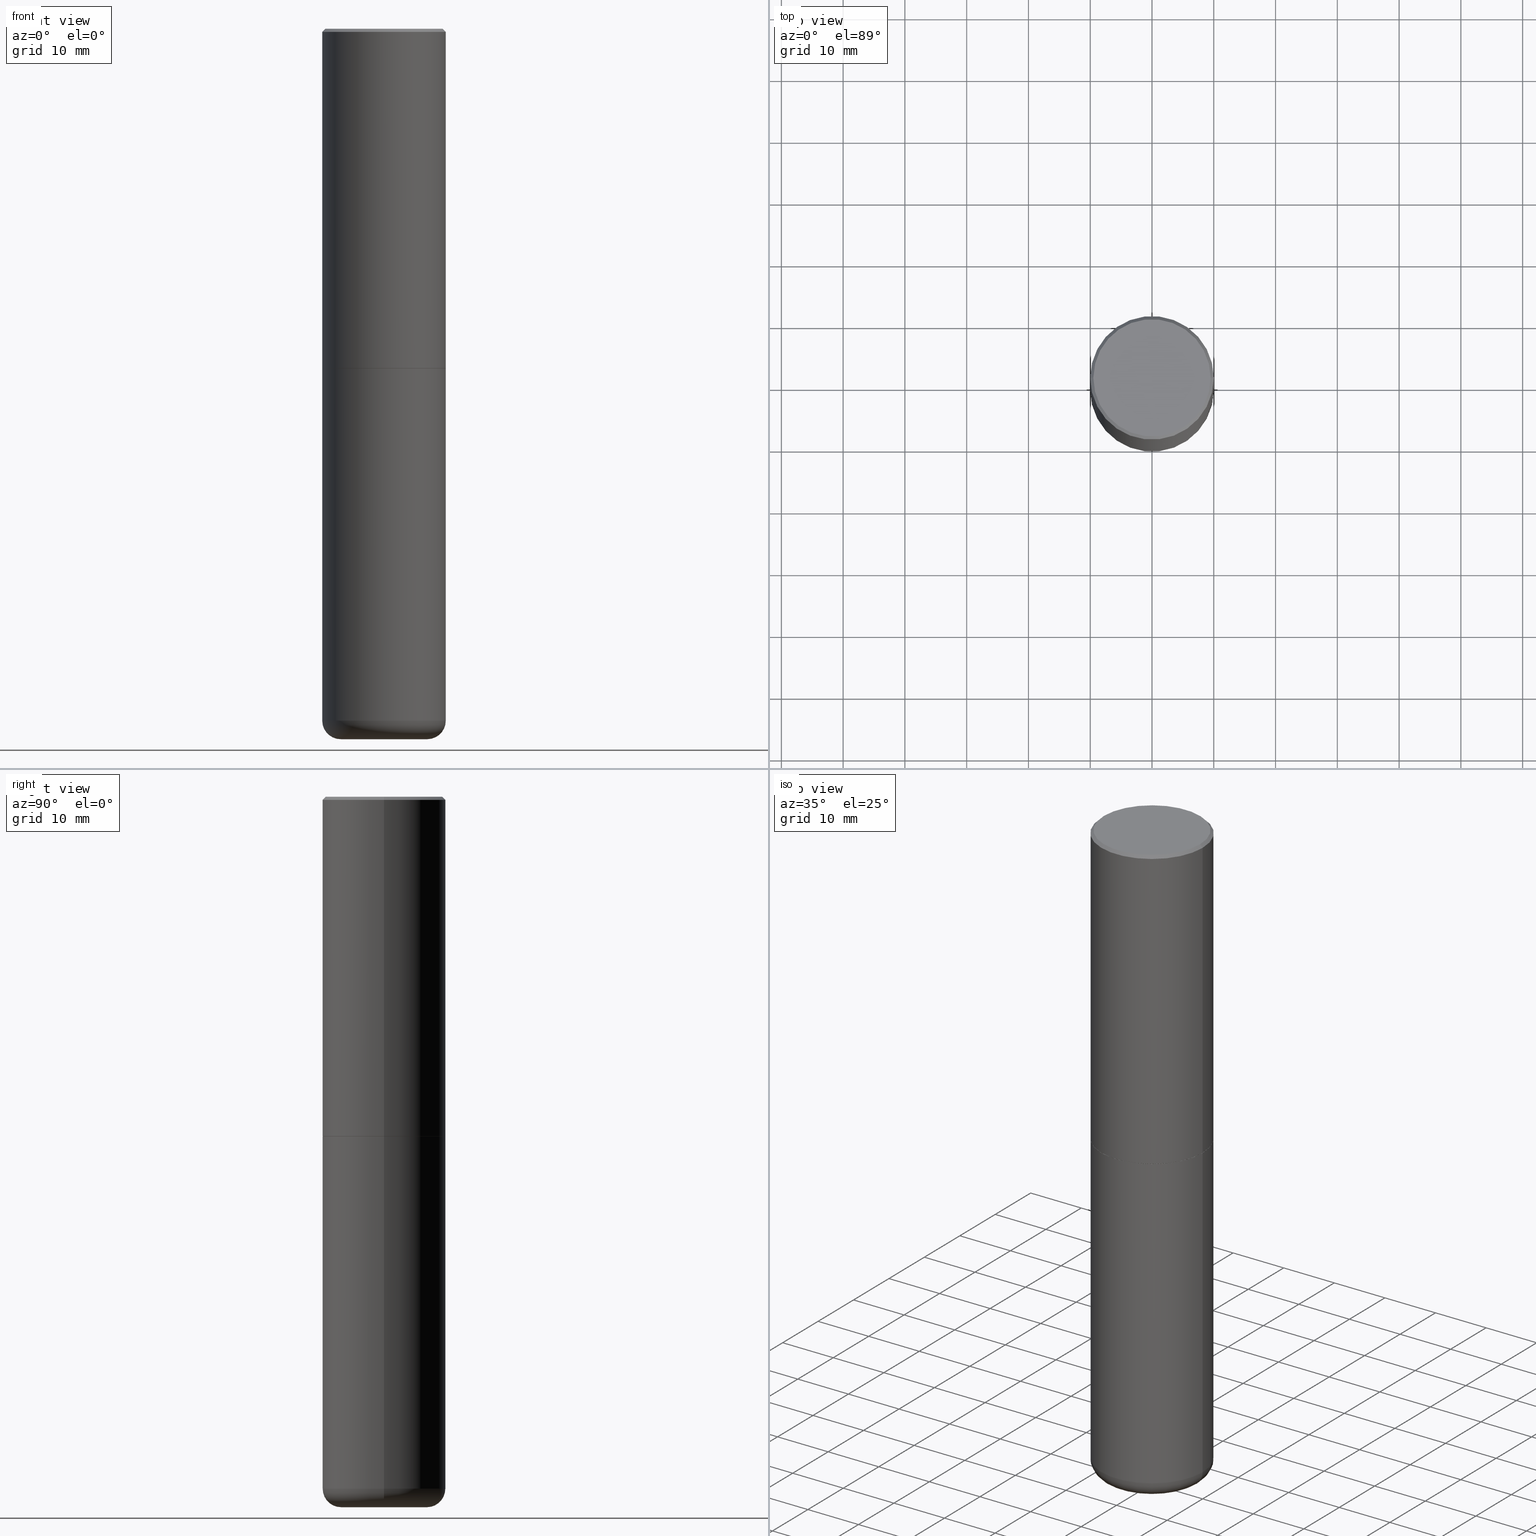
[diagram: canonical four-view strip — front | top / right | iso, engineering-drawing reading convention]
A machine part, canonical four-view strip (front | top / right | iso — engineering-drawing reading convention). The complete STEP part file that produces these views, byte-faithful:
ISO-10303-21;
HEADER;
FILE_DESCRIPTION (( 'STEP AP203' ),
    '1' );
FILE_NAME ('74659.STEP',
    '2024-03-06T15:54:28',
    ( '' ),
    ( '' ),
    'SwSTEP 2.0',
    'SolidWorks 2023',
    '' );
FILE_SCHEMA (( 'CONFIG_CONTROL_DESIGN' ));
ENDSEC;

DATA;
#1 = ORIENTED_EDGE ( 'NONE', *, *, #77, .F. ) ;
#2 = DIRECTION ( 'NONE',  ( -2.445468806185136597E-29, 3.491481338843145583E-15, 1.000000000000000000 ) ) ;
#3 = PERSON ( 'UNSPECIFIED', 'UNSPECIFIED', 'UNSPECIFIED', ('UNSPECIFIED'), ('UNSPECIFIED'), ('UNSPECIFIED') ) ;
#4 = ORIENTED_EDGE ( 'NONE', *, *, #51, .F. ) ;
#5 = EDGE_CURVE ( 'NONE', #29, #361, #12, .T. ) ;
#6 = EDGE_LOOP ( 'NONE', ( #138, #241, #257, #205 ) ) ;
#7 = AXIS2_PLACEMENT_3D ( 'NONE', #285, #251, #155 ) ;
#8 = AXIS2_PLACEMENT_3D ( 'NONE', #80, #46, #402 ) ;
#9 = ORIENTED_EDGE ( 'NONE', *, *, #168, .F. ) ;
#10 = CARTESIAN_POINT ( 'NONE',  ( 1.078329470087335798E-28, -1.539568696362884818E-14, -4.409499999999999531 ) ) ;
#11 = APPROVAL ( #246, 'UNSPECIFIED' ) ;
#12 = LINE ( 'NONE', #147, #284 ) ;
#13 = PERSON_AND_ORGANIZATION ( #3, #306 ) ;
#14 = SECURITY_CLASSIFICATION ( '', '', #375 ) ;
#15 = DIRECTION ( 'NONE',  ( -1.000000000000000000, 6.982962677686265922E-15, -4.876176775795935793E-29 ) ) ;
#16 = EDGE_CURVE ( 'NONE', #234, #361, #302, .T. ) ;
#17 = DESIGN_CONTEXT ( 'detailed design', #183, 'design' ) ;
#18 = APPROVAL_DATE_TIME ( #315, #11 ) ;
#19 = AXIS2_PLACEMENT_3D ( 'NONE', #94, #2, #186 ) ;
#20 = PRODUCT_DEFINITION_FORMATION_WITH_SPECIFIED_SOURCE ( 'ANY', '', #400, .NOT_KNOWN. ) ;
#21 = FACE_OUTER_BOUND ( 'NONE', #330, .T. ) ;
#22 = DIRECTION ( 'NONE',  ( -2.445468806185136597E-29, 3.491481338843145583E-15, 1.000000000000000000 ) ) ;
#23 = CARTESIAN_POINT ( 'NONE',  ( 0.3937000000000000499, -2.770807688499515734E-15, -0.02000000000000008715 ) ) ;
#24 = AXIS2_PLACEMENT_3D ( 'NONE', #163, #167, #290 ) ;
#25 = CARTESIAN_POINT ( 'NONE',  ( 0.2756000000000000116, -1.773253542371655569E-14, -4.527599999999998737 ) ) ;
#26 = LOCAL_TIME ( 10, 54, 28.00000000000000000, #83 ) ;
#27 = CARTESIAN_POINT ( 'NONE',  ( -0.3936999999999998834, -1.259828021294133576E-14, -4.409499999999999531 ) ) ;
#28 = PERSON_AND_ORGANIZATION_ROLE ( 'creator' ) ;
#29 = VERTEX_POINT ( 'NONE', #121 ) ;
#30 = DIRECTION ( 'NONE',  ( -2.445468806185136597E-29, 3.491481338843145583E-15, 1.000000000000000000 ) ) ;
#31 = VERTEX_POINT ( 'NONE', #25 ) ;
#32 = DIRECTION ( 'NONE',  ( -2.445468806185136597E-29, 3.491481338843145583E-15, 1.000000000000000000 ) ) ;
#33 = DATE_AND_TIME ( #102, #405 ) ;
#34 = ORIENTED_EDGE ( 'NONE', *, *, #154, .F. ) ;
#35 = DIRECTION ( 'NONE',  ( 7.105427357601001859E-15, 1.000000000000000000, -3.491481338843145583E-15 ) ) ;
#36 = EDGE_CURVE ( 'NONE', #367, #29, #278, .T. ) ;
#37 = ORIENTED_EDGE ( 'NONE', *, *, #231, .T. ) ;
#38 = CARTESIAN_POINT ( 'NONE',  ( 0.000000000000000000, 0.000000000000000000, 0.000000000000000000 ) ) ;
#39 = CALENDAR_DATE ( 2024, 6, 3 ) ;
#40 = EDGE_LOOP ( 'NONE', ( #4, #37, #202, #344 ) ) ;
#41 = PRODUCT_RELATED_PRODUCT_CATEGORY ( 'detail', '', ( #400 ) ) ;
#42 = AXIS2_PLACEMENT_3D ( 'NONE', #409, #123, #374 ) ;
#43 = ADVANCED_FACE ( 'NONE', ( #60 ), #252, .T. ) ;
#44 = AXIS2_PLACEMENT_3D ( 'NONE', #111, #267, #68 ) ;
#45 = EDGE_LOOP ( 'NONE', ( #201, #337, #72, #384 ) ) ;
#46 = DIRECTION ( 'NONE',  ( 0.000000000000000000, 0.000000000000000000, 1.000000000000000000 ) ) ;
#47 = ORIENTED_EDGE ( 'NONE', *, *, #58, .F. ) ;
#48 = DIRECTION ( 'NONE',  ( 1.000000000000000000, -6.982962677686269077E-15, 0.000000000000000000 ) ) ;
#49 = PERSON_AND_ORGANIZATION_ROLE ( 'creator' ) ;
#50 = AXIS2_PLACEMENT_3D ( 'NONE', #153, #382, #294 ) ;
#51 = EDGE_CURVE ( 'NONE', #341, #332, #250, .T. ) ;
#52 = ADVANCED_FACE ( 'NONE', ( #21 ), #190, .F. ) ;
#53 = DIRECTION ( 'NONE',  ( -1.000000000000000000, 6.982962677686265922E-15, 0.000000000000000000 ) ) ;
#54 = FACE_OUTER_BOUND ( 'NONE', #66, .T. ) ;
#55 = DIRECTION ( 'NONE',  ( 0.7071067811865469066, -7.319954787623252890E-15, -0.7071067811865479058 ) ) ;
#56 = CIRCLE ( 'NONE', #7, 0.1180999999999997191 ) ;
#57 = DIRECTION ( 'NONE',  ( -2.445468806185136597E-29, 3.491481338843145583E-15, 1.000000000000000000 ) ) ;
#58 = EDGE_CURVE ( 'NONE', #79, #234, #142, .T. ) ;
#59 = AXIS2_PLACEMENT_3D ( 'NONE', #67, #30, #356 ) ;
#60 = FACE_OUTER_BOUND ( 'NONE', #6, .T. ) ;
#61 = CARTESIAN_POINT ( 'NONE',  ( 0.3937000000000000499, -2.749192406205083217E-15, 1.919750796630860172E-29 ) ) ;
#62 = VERTEX_POINT ( 'NONE', #194 ) ;
#63 = FACE_OUTER_BOUND ( 'NONE', #209, .T. ) ;
#64 = APPROVAL ( #232, 'UNSPECIFIED' ) ;
#65 = CIRCLE ( 'NONE', #396, 0.3926999999999999935 ) ;
#66 = EDGE_LOOP ( 'NONE', ( #169, #96 ) ) ;
#67 = CARTESIAN_POINT ( 'NONE',  ( 5.295418152913293224E-29, -7.560453691130945845E-15, -2.165399999999999547 ) ) ;
#68 = DIRECTION ( 'NONE',  ( 1.000000000000000000, -6.982962677686265922E-15, 0.000000000000000000 ) ) ;
#69 = ORIENTED_EDGE ( 'NONE', *, *, #403, .T. ) ;
#70 = DIRECTION ( 'NONE',  ( -2.445468806185136597E-29, 3.491481338843145583E-15, 1.000000000000000000 ) ) ;
#71 = AXIS2_PLACEMENT_3D ( 'NONE', #316, #22, #327 ) ;
#72 = ORIENTED_EDGE ( 'NONE', *, *, #160, .T. ) ;
#73 = DIRECTION ( 'NONE',  ( 1.000000000000000000, -6.982962677686268288E-15, 4.883557194083112901E-29 ) ) ;
#74 = DATE_TIME_ROLE ( 'classification_date' ) ;
#75 = ORIENTED_EDGE ( 'NONE', *, *, #151, .F. ) ;
#76 =( NAMED_UNIT ( * ) SI_UNIT ( $, .STERADIAN. ) SOLID_ANGLE_UNIT ( ) );
#77 = EDGE_CURVE ( 'NONE', #31, #62, #56, .T. ) ;
#78 = CARTESIAN_POINT ( 'NONE',  ( 1.107210456688382074E-28, -1.580803090974622074E-14, -4.527599999999998737 ) ) ;
#79 = VERTEX_POINT ( 'NONE', #219 ) ;
#80 = CARTESIAN_POINT ( 'NONE',  ( 0.000000000000000000, 0.000000000000000000, 0.000000000000000000 ) ) ;
#81 = CARTESIAN_POINT ( 'NONE',  ( 4.890937612370294178E-31, -6.982962677686321191E-17, -0.02000000000000008715 ) ) ;
#82 = ORIENTED_EDGE ( 'NONE', *, *, #318, .T. ) ;
#83 = COORDINATED_UNIVERSAL_TIME_OFFSET ( 5, 0, .BEHIND. ) ;
#84 = LOCAL_TIME ( 10, 54, 28.00000000000000000, #233 ) ;
#85 = ADVANCED_FACE ( 'NONE', ( #95 ), #413, .T. ) ;
#86 = ADVANCED_FACE ( 'NONE', ( #317 ), #247, .T. ) ;
#87 = AXIS2_PLACEMENT_3D ( 'NONE', #334, #32, #358 ) ;
#88 = DIRECTION ( 'NONE',  ( -2.445468806185136597E-29, 3.491481338843145583E-15, 1.000000000000000000 ) ) ;
#89 = CARTESIAN_POINT ( 'NONE',  ( 1.565777121502829671E-45, -2.235514755570671047E-31, -6.402768735150616610E-17 ) ) ;
#90 = CARTESIAN_POINT ( 'NONE',  ( 1.565777121502829671E-45, -2.235514755570671047E-31, -6.402768735150616610E-17 ) ) ;
#91 = VECTOR ( 'NONE', #342, 39.37007874015748143 ) ;
#92 = CC_DESIGN_PERSON_AND_ORGANIZATION_ASSIGNMENT ( #192, #28, ( #20 ) ) ;
#93 = DIRECTION ( 'NONE',  ( -2.445468806185136597E-29, 3.491481338843145583E-15, 1.000000000000000000 ) ) ;
#94 = CARTESIAN_POINT ( 'NONE',  ( 0.000000000000000000, 0.000000000000000000, 0.000000000000000000 ) ) ;
#95 = FACE_OUTER_BOUND ( 'NONE', #178, .T. ) ;
#96 = ORIENTED_EDGE ( 'NONE', *, *, #120, .T. ) ;
#97 = FACE_OUTER_BOUND ( 'NONE', #140, .T. ) ;
#98 = DIRECTION ( 'NONE',  ( -1.000000000000000000, 6.982962677686265922E-15, -4.876176775795935793E-29 ) ) ;
#99 = LOCAL_TIME ( 10, 54, 28.00000000000000000, #393 ) ;
#100 = PERSON_AND_ORGANIZATION ( #3, #306 ) ;
#101 = DIRECTION ( 'NONE',  ( -2.445468806185136597E-29, 3.491481338843145583E-15, 1.000000000000000000 ) ) ;
#102 = CALENDAR_DATE ( 2024, 6, 3 ) ;
#103 = ORIENTED_EDGE ( 'NONE', *, *, #410, .T. ) ;
#104 = ORIENTED_EDGE ( 'NONE', *, *, #329, .F. ) ;
#105 = CALENDAR_DATE ( 2024, 6, 3 ) ;
#106 = CARTESIAN_POINT ( 'NONE',  ( 5.295418152913294345E-29, -7.560453691130947423E-15, -2.165399999999999991 ) ) ;
#107 = AXIS2_PLACEMENT_3D ( 'NONE', #129, #254, #53 ) ;
#108 = CC_DESIGN_PERSON_AND_ORGANIZATION_ASSIGNMENT ( #164, #256, ( #14 ) ) ;
#109 = ORIENTED_EDGE ( 'NONE', *, *, #214, .T. ) ;
#110 = ORIENTED_EDGE ( 'NONE', *, *, #259, .F. ) ;
#111 = CARTESIAN_POINT ( 'NONE',  ( 4.890937612370294178E-31, -6.982962677686321191E-17, -0.02000000000000008715 ) ) ;
#112 = CC_DESIGN_DATE_AND_TIME_ASSIGNMENT ( #150, #311, ( #288 ) ) ;
#113 = DIRECTION ( 'NONE',  ( 1.000000000000000000, -6.982962677686265133E-15, 0.000000000000000000 ) ) ;
#114 = ORIENTED_EDGE ( 'NONE', *, *, #381, .F. ) ;
#115 = CIRCLE ( 'NONE', #349, 0.2756000000000000116 ) ;
#116 = PLANE ( 'NONE',  #280 ) ;
#117 = AXIS2_PLACEMENT_3D ( 'NONE', #348, #57, #187 ) ;
#118 = DIRECTION ( 'NONE',  ( 1.000000000000000000, -6.982962677686268288E-15, 4.883557194083112901E-29 ) ) ;
#119 = CIRCLE ( 'NONE', #368, 0.3926999999999999935 ) ;
#120 = EDGE_CURVE ( 'NONE', #234, #79, #333, .T. ) ;
#121 = CARTESIAN_POINT ( 'NONE',  ( 0.3937000000000002720, -1.030615461599718763E-14, -2.164399999999999658 ) ) ;
#122 = ADVANCED_FACE ( 'NONE', ( #200 ), #261, .T. ) ;
#123 = DIRECTION ( 'NONE',  ( 2.438088387897960049E-29, -3.491481338843145188E-15, -1.000000000000000000 ) ) ;
#124 = CLOSED_SHELL ( 'NONE', ( #387, #243, #221, #364, #85, #122, #177, #281 ) ) ;
#125 = CIRCLE ( 'NONE', #182, 0.3937000000000000499 ) ;
#126 = DIRECTION ( 'NONE',  ( 1.000000000000000000, -6.982962677686265133E-15, 0.000000000000000000 ) ) ;
#127 = EDGE_CURVE ( 'NONE', #332, #29, #360, .T. ) ;
#128 = ORIENTED_EDGE ( 'NONE', *, *, #36, .F. ) ;
#129 = CARTESIAN_POINT ( 'NONE',  ( 4.890937612370294178E-31, -6.982962677686321191E-17, -0.02000000000000008715 ) ) ;
#130 = DIRECTION ( 'NONE',  ( -2.445468806185136597E-29, 3.491481338843145583E-15, 1.000000000000000000 ) ) ;
#131 = CARTESIAN_POINT ( 'NONE',  ( 1.107210456688382074E-28, -1.580803090974622074E-14, -4.527599999999998737 ) ) ;
#132 = VECTOR ( 'NONE', #377, 39.37007874015748854 ) ;
#133 = CARTESIAN_POINT ( 'NONE',  ( 5.295418152913294345E-29, -7.560453691130947423E-15, -2.165399999999999991 ) ) ;
#134 = EDGE_CURVE ( 'NONE', #228, #62, #286, .T. ) ;
#135 = VECTOR ( 'NONE', #195, 39.37007874015748143 ) ;
#136 = DIRECTION ( 'NONE',  ( 1.000000000000000000, -6.982962677686265133E-15, 0.000000000000000000 ) ) ;
#137 =( NAMED_UNIT ( * ) PLANE_ANGLE_UNIT ( ) SI_UNIT ( $, .RADIAN. ) );
#138 = ORIENTED_EDGE ( 'NONE', *, *, #410, .F. ) ;
#139 = PERSON_AND_ORGANIZATION ( #3, #306 ) ;
#140 = EDGE_LOOP ( 'NONE', ( #110, #171 ) ) ;
#141 = APPLICATION_PROTOCOL_DEFINITION ( 'international standard', 'config_control_design', 1994, #183 ) ;
#142 = CIRCLE ( 'NONE', #188, 0.3737000000000000322 ) ;
#143 =( GEOMETRIC_REPRESENTATION_CONTEXT ( 3 ) GLOBAL_UNCERTAINTY_ASSIGNED_CONTEXT ( ( #185 ) ) GLOBAL_UNIT_ASSIGNED_CONTEXT ( ( #336, #137, #76 ) ) REPRESENTATION_CONTEXT ( 'NONE', 'WORKASPACE' ) );
#144 = ORIENTED_EDGE ( 'NONE', *, *, #298, .F. ) ;
#145 = CARTESIAN_POINT ( 'NONE',  ( -0.3937000000000000499, 2.797406750687514786E-15, -1.936584745033356735E-29 ) ) ;
#146 = DIRECTION ( 'NONE',  ( 1.000000000000000000, -6.982962677686265922E-15, 0.000000000000000000 ) ) ;
#147 = CARTESIAN_POINT ( 'NONE',  ( 0.3937000000000001609, -2.749192406205084400E-15, 1.919750796630860732E-29 ) ) ;
#148 = FACE_OUTER_BOUND ( 'NONE', #235, .T. ) ;
#149 = CC_DESIGN_APPROVAL ( #226, ( #14 ) ) ;
#150 = DATE_AND_TIME ( #181, #26 ) ;
#151 = EDGE_CURVE ( 'NONE', #309, #31, #345, .T. ) ;
#152 = CALENDAR_DATE ( 2024, 6, 3 ) ;
#153 = CARTESIAN_POINT ( 'NONE',  ( 5.295418152913294345E-29, -7.560453691130947423E-15, -2.165399999999999991 ) ) ;
#154 = EDGE_CURVE ( 'NONE', #304, #397, #189, .T. ) ;
#155 = DIRECTION ( 'NONE',  ( 1.000000000000000000, -6.982962677686273021E-15, 0.000000000000000000 ) ) ;
#156 = AXIS2_PLACEMENT_3D ( 'NONE', #89, #255, #301 ) ;
#157 = DIRECTION ( 'NONE',  ( 0.7071067811865232589, -2.468850131082003836E-15, 0.7071067811865715536 ) ) ;
#158 = APPROVAL_PERSON_ORGANIZATION ( #100, #226, #357 ) ;
#159 = CARTESIAN_POINT ( 'NONE',  ( 0.3937000000000000499, -1.030964609733602906E-14, -2.165399999999999547 ) ) ;
#160 = EDGE_CURVE ( 'NONE', #361, #198, #125, .T. ) ;
#161 = PERSON_AND_ORGANIZATION ( #3, #306 ) ;
#162 = VECTOR ( 'NONE', #415, 39.37007874015748143 ) ;
#163 = CARTESIAN_POINT ( 'NONE',  ( 4.890937612370294178E-31, -6.982962677686321191E-17, -0.02000000000000008715 ) ) ;
#164 = PERSON_AND_ORGANIZATION ( #3, #306 ) ;
#165 = ORIENTED_EDGE ( 'NONE', *, *, #373, .F. ) ;
#166 = CC_DESIGN_APPROVAL ( #11, ( #20 ) ) ;
#167 = DIRECTION ( 'NONE',  ( 2.445468806185136597E-29, -3.491481338843145583E-15, -1.000000000000000000 ) ) ;
#168 = EDGE_CURVE ( 'NONE', #29, #332, #388, .T. ) ;
#169 = ORIENTED_EDGE ( 'NONE', *, *, #58, .T. ) ;
#170 = FACE_OUTER_BOUND ( 'NONE', #180, .T. ) ;
#171 = ORIENTED_EDGE ( 'NONE', *, *, #231, .F. ) ;
#172 = APPLICATION_PROTOCOL_DEFINITION ( 'international standard', 'config_control_design', 1994, #191 ) ;
#173 = AXIS2_PLACEMENT_3D ( 'NONE', #10, #265, #73 ) ;
#174 = CC_DESIGN_APPROVAL ( #64, ( #288 ) ) ;
#175 = CYLINDRICAL_SURFACE ( 'NONE', #204, 0.3937000000000000499 ) ;
#176 = EDGE_LOOP ( 'NONE', ( #238, #401, #273, #270 ) ) ;
#177 = ADVANCED_FACE ( 'NONE', ( #97 ), #411, .F. ) ;
#178 = EDGE_LOOP ( 'NONE', ( #365, #363, #266, #114 ) ) ;
#179 = ORIENTED_EDGE ( 'NONE', *, *, #154, .T. ) ;
#180 = EDGE_LOOP ( 'NONE', ( #215, #47, #109, #289 ) ) ;
#181 = CALENDAR_DATE ( 2024, 6, 3 ) ;
#182 = AXIS2_PLACEMENT_3D ( 'NONE', #81, #212, #216 ) ;
#183 = APPLICATION_CONTEXT ( 'configuration controlled 3d designs of mechanical parts and assemblies' ) ;
#184 = FACE_OUTER_BOUND ( 'NONE', #392, .T. ) ;
#185 = UNCERTAINTY_MEASURE_WITH_UNIT (LENGTH_MEASURE( 1.000000000000000082E-05 ), #336, 'distance_accuracy_value', 'NONE');
#186 = DIRECTION ( 'NONE',  ( 1.000000000000000000, -6.982962677686266711E-15, 4.876176775795935793E-29 ) ) ;
#187 = DIRECTION ( 'NONE',  ( 1.000000000000000000, -6.982962677686266711E-15, 4.876176775795935793E-29 ) ) ;
#188 = AXIS2_PLACEMENT_3D ( 'NONE', #90, #93, #223 ) ;
#189 = CIRCLE ( 'NONE', #249, 0.3937000000000000499 ) ;
#190 = PLANE ( 'NONE',  #42 ) ;
#191 = APPLICATION_CONTEXT ( 'configuration controlled 3d designs of mechanical parts and assemblies' ) ;
#192 = PERSON_AND_ORGANIZATION ( #3, #306 ) ;
#193 = EDGE_CURVE ( 'NONE', #332, #198, #277, .T. ) ;
#194 = CARTESIAN_POINT ( 'NONE',  ( 0.3936999999999998834, -1.814487936983393140E-14, -4.409499999999999531 ) ) ;
#195 = DIRECTION ( 'NONE',  ( -2.445468806185136877E-29, 3.491481338843145188E-15, 1.000000000000000000 ) ) ;
#196 = PLANE ( 'NONE',  #217 ) ;
#197 = LOCAL_TIME ( 10, 54, 28.00000000000000000, #319 ) ;
#198 = VERTEX_POINT ( 'NONE', #287 ) ;
#199 = LINE ( 'NONE', #61, #135 ) ;
#200 = FACE_OUTER_BOUND ( 'NONE', #40, .T. ) ;
#201 = ORIENTED_EDGE ( 'NONE', *, *, #120, .F. ) ;
#202 = ORIENTED_EDGE ( 'NONE', *, *, #36, .T. ) ;
#203 = PERSON_AND_ORGANIZATION ( #3, #306 ) ;
#204 = AXIS2_PLACEMENT_3D ( 'NONE', #38, #70, #398 ) ;
#205 = ORIENTED_EDGE ( 'NONE', *, *, #318, .F. ) ;
#206 = FACE_OUTER_BOUND ( 'NONE', #414, .T. ) ;
#207 = ADVANCED_FACE ( 'NONE', ( #184 ), #116, .T. ) ;
#208 = SHAPE_DEFINITION_REPRESENTATION ( #299, #366 ) ;
#209 = EDGE_LOOP ( 'NONE', ( #293, #417, #295, #335 ) ) ;
#210 = APPROVAL_STATUS ( 'not_yet_approved' ) ;
#211 = PERSON_AND_ORGANIZATION_ROLE ( 'design_owner' ) ;
#212 = DIRECTION ( 'NONE',  ( -2.445468806185136597E-29, 3.491481338843145583E-15, 1.000000000000000000 ) ) ;
#213 = VECTOR ( 'NONE', #385, 39.37007874015748854 ) ;
#214 = EDGE_CURVE ( 'NONE', #79, #198, #370, .T. ) ;
#215 = ORIENTED_EDGE ( 'NONE', *, *, #16, .F. ) ;
#216 = DIRECTION ( 'NONE',  ( 1.000000000000000000, -6.982962677686265922E-15, 0.000000000000000000 ) ) ;
#217 = AXIS2_PLACEMENT_3D ( 'NONE', #224, #314, #98 ) ;
#218 = CYLINDRICAL_SURFACE ( 'NONE', #19, 0.3937000000000001609 ) ;
#219 = CARTESIAN_POINT ( 'NONE',  ( -0.3737000000000000322, 2.644447966039789058E-15, -6.402768735152454409E-17 ) ) ;
#220 = CARTESIAN_POINT ( 'NONE',  ( 0.3926999999999999935, -1.030266313465834305E-14, -2.165399999999999991 ) ) ;
#221 = ADVANCED_FACE ( 'NONE', ( #389 ), #380, .T. ) ;
#222 = AXIS2_PLACEMENT_3D ( 'NONE', #242, #35, #359 ) ;
#223 = DIRECTION ( 'NONE',  ( 1.000000000000000000, -6.982962677686266711E-15, 4.875705233642009010E-29 ) ) ;
#224 = CARTESIAN_POINT ( 'NONE',  ( 2.609533152651357803E-15, 0.3737000000000000322, -1.336780420001436835E-15 ) ) ;
#225 = PERSON_AND_ORGANIZATION_ROLE ( 'design_supplier' ) ;
#226 = APPROVAL ( #210, 'UNSPECIFIED' ) ;
#227 = CARTESIAN_POINT ( 'NONE',  ( 0.3737000000000000322, -2.667287895133368753E-15, -6.402768735148772648E-17 ) ) ;
#228 = VERTEX_POINT ( 'NONE', #27 ) ;
#229 = APPROVAL_PERSON_ORGANIZATION ( #139, #64, #297 ) ;
#230 = CARTESIAN_POINT ( 'NONE',  ( 5.292972684107107621E-29, -7.556962209792102838E-15, -2.164399999999999658 ) ) ;
#231 = EDGE_CURVE ( 'NONE', #341, #367, #119, .T. ) ;
#232 = APPROVAL_STATUS ( 'not_yet_approved' ) ;
#233 = COORDINATED_UNIVERSAL_TIME_OFFSET ( 5, 0, .BEHIND. ) ;
#234 = VERTEX_POINT ( 'NONE', #227 ) ;
#235 = EDGE_LOOP ( 'NONE', ( #390, #69, #144, #1 ) ) ;
#236 = PERSON_AND_ORGANIZATION ( #3, #306 ) ;
#237 = AXIS2_PLACEMENT_3D ( 'NONE', #275, #269, #240 ) ;
#238 = ORIENTED_EDGE ( 'NONE', *, *, #403, .F. ) ;
#239 = MECHANICAL_CONTEXT ( 'NONE', #191, 'mechanical' ) ;
#240 = DIRECTION ( 'NONE',  ( 1.000000000000000000, -6.982962677686262766E-15, 0.000000000000000000 ) ) ;
#241 = ORIENTED_EDGE ( 'NONE', *, *, #134, .T. ) ;
#242 = CARTESIAN_POINT ( 'NONE',  ( -0.2756000000000000116, -1.343743118387401317E-14, -4.409499999999999531 ) ) ;
#243 = ADVANCED_FACE ( 'NONE', ( #63 ), #218, .T. ) ;
#244 = CIRCLE ( 'NONE', #59, 0.3937000000000000499 ) ;
#245 = MANIFOLD_SOLID_BREP ( 'Body-Move/Copy2[2]', #124 ) ;
#246 = APPROVAL_STATUS ( 'not_yet_approved' ) ;
#247 = TOROIDAL_SURFACE ( 'NONE', #343, 0.2756000000000000116, 0.1180999999999997468 ) ;
#248 = DIRECTION ( 'NONE',  ( 1.000000000000000000, -6.982962677686269077E-15, 0.000000000000000000 ) ) ;
#249 = AXIS2_PLACEMENT_3D ( 'NONE', #307, #272, #113 ) ;
#250 = LINE ( 'NONE', #371, #132 ) ;
#251 = DIRECTION ( 'NONE',  ( -6.982962677686266711E-15, -1.000000000000000000, 3.491481338843145583E-15 ) ) ;
#252 = CYLINDRICAL_SURFACE ( 'NONE', #369, 0.3937000000000000499 ) ;
#253 = CONICAL_SURFACE ( 'NONE', #87, 0.3926999999999999935, 0.7853981633974141952 ) ;
#254 = DIRECTION ( 'NONE',  ( 2.445468806185136597E-29, -3.491481338843145583E-15, -1.000000000000000000 ) ) ;
#255 = DIRECTION ( 'NONE',  ( -2.445468806185136597E-29, 3.491481338843145583E-15, 1.000000000000000000 ) ) ;
#256 = PERSON_AND_ORGANIZATION_ROLE ( 'classification_officer' ) ;
#257 = ORIENTED_EDGE ( 'NONE', *, *, #329, .T. ) ;
#258 = CARTESIAN_POINT ( 'NONE',  ( -0.3937000000000001609, 2.797406750687515575E-15, -1.936584745033357296E-29 ) ) ;
#259 = EDGE_CURVE ( 'NONE', #367, #341, #65, .T. ) ;
#260 = DIRECTION ( 'NONE',  ( -2.445468806185136597E-29, 3.491481338843145583E-15, 1.000000000000000000 ) ) ;
#261 = CONICAL_SURFACE ( 'NONE', #412, 0.3926999999999999935, 0.7853981633974141952 ) ;
#262 = CARTESIAN_POINT ( 'NONE',  ( -0.3937000000000003830, -1.015989167596963746E-15, -2.164399999999999658 ) ) ;
#263 = DATE_AND_TIME ( #105, #99 ) ;
#264 = CARTESIAN_POINT ( 'NONE',  ( 5.292972684107107621E-29, -7.556962209792102838E-15, -2.164399999999999658 ) ) ;
#265 = DIRECTION ( 'NONE',  ( -2.445468806185136597E-29, 3.491481338843145583E-15, 1.000000000000000000 ) ) ;
#266 = ORIENTED_EDGE ( 'NONE', *, *, #5, .T. ) ;
#267 = DIRECTION ( 'NONE',  ( -2.445468806185136597E-29, 3.491481338843145583E-15, 1.000000000000000000 ) ) ;
#268 = CIRCLE ( 'NONE', #44, 0.3937000000000000499 ) ;
#269 = DIRECTION ( 'NONE',  ( -2.445468806185136597E-29, 3.491481338843145583E-15, 1.000000000000000000 ) ) ;
#270 = ORIENTED_EDGE ( 'NONE', *, *, #134, .F. ) ;
#271 =( LENGTH_UNIT ( ) NAMED_UNIT ( * ) SI_UNIT ( $, .METRE. ) );
#272 = DIRECTION ( 'NONE',  ( -2.445468806185136597E-29, 3.491481338843145583E-15, 1.000000000000000000 ) ) ;
#273 = ORIENTED_EDGE ( 'NONE', *, *, #77, .T. ) ;
#274 = CC_DESIGN_SECURITY_CLASSIFICATION ( #14, ( #20 ) ) ;
#275 = CARTESIAN_POINT ( 'NONE',  ( 1.078329470087335798E-28, -1.539568696362884818E-14, -4.409499999999999531 ) ) ;
#276 = CC_DESIGN_PERSON_AND_ORGANIZATION_ASSIGNMENT ( #161, #225, ( #20 ) ) ;
#277 = LINE ( 'NONE', #258, #162 ) ;
#278 = LINE ( 'NONE', #220, #394 ) ;
#279 = VECTOR ( 'NONE', #55, 39.37007874015748854 ) ;
#280 = AXIS2_PLACEMENT_3D ( 'NONE', #406, #346, #15 ) ;
#281 = ADVANCED_FACE ( 'NONE', ( #54 ), #196, .F. ) ;
#282 = DIRECTION ( 'NONE',  ( 1.000000000000000000, -6.982962677686265922E-15, 4.876176775795935793E-29 ) ) ;
#283 = DIRECTION ( 'NONE',  ( -2.445468806185136597E-29, 3.491481338843145583E-15, 1.000000000000000000 ) ) ;
#284 = VECTOR ( 'NONE', #310, 39.37007874015748143 ) ;
#285 = CARTESIAN_POINT ( 'NONE',  ( 0.2756000000000000116, -1.732019147759918314E-14, -4.409499999999999531 ) ) ;
#286 = CIRCLE ( 'NONE', #237, 0.3937000000000000499 ) ;
#287 = CARTESIAN_POINT ( 'NONE',  ( -0.3937000000000000499, 2.679362779428219918E-15, -0.02000000000000008715 ) ) ;
#288 = PRODUCT_DEFINITION ( 'UNKNOWN', '', #20, #17 ) ;
#289 = ORIENTED_EDGE ( 'NONE', *, *, #381, .T. ) ;
#290 = DIRECTION ( 'NONE',  ( -1.000000000000000000, 6.982962677686265922E-15, 0.000000000000000000 ) ) ;
#291 = CARTESIAN_POINT ( 'NONE',  ( 0.3937000000000000499, -2.770807688499515734E-15, -0.02000000000000008715 ) ) ;
#292 = DATE_AND_TIME ( #39, #84 ) ;
#293 = ORIENTED_EDGE ( 'NONE', *, *, #168, .T. ) ;
#294 = DIRECTION ( 'NONE',  ( 1.000000000000000000, -6.982962677686265922E-15, 4.876176775795935793E-29 ) ) ;
#295 = ORIENTED_EDGE ( 'NONE', *, *, #160, .F. ) ;
#296 = CONICAL_SURFACE ( 'NONE', #24, 0.3937000000000000499, 0.7853981633974476129 ) ;
#297 = APPROVAL_ROLE ( '' ) ;
#298 = EDGE_CURVE ( 'NONE', #62, #228, #321, .T. ) ;
#299 = PRODUCT_DEFINITION_SHAPE ( 'NONE', 'NONE',  #288 ) ;
#300 = ORIENTED_EDGE ( 'NONE', *, *, #298, .T. ) ;
#301 = DIRECTION ( 'NONE',  ( 1.000000000000000000, -6.982962677686266711E-15, 4.875705233642009010E-29 ) ) ;
#302 = LINE ( 'NONE', #291, #279 ) ;
#303 = APPROVAL_DATE_TIME ( #292, #226 ) ;
#304 = VERTEX_POINT ( 'NONE', #159 ) ;
#305 = LINE ( 'NONE', #145, #91 ) ;
#306 = ORGANIZATION ( 'UNSPECIFIED', 'UNSPECIFIED', '' ) ;
#307 = CARTESIAN_POINT ( 'NONE',  ( 5.295418152913293224E-29, -7.560453691130945845E-15, -2.165399999999999547 ) ) ;
#308 = APPROVAL_PERSON_ORGANIZATION ( #13, #11, #372 ) ;
#309 = VERTEX_POINT ( 'NONE', #351 ) ;
#310 = DIRECTION ( 'NONE',  ( -2.445468806185136877E-29, 3.491481338843145188E-15, 1.000000000000000000 ) ) ;
#311 = DATE_TIME_ROLE ( 'creation_date' ) ;
#312 = DIMENSIONAL_EXPONENTS ( 1.000000000000000000, 0.000000000000000000, 0.000000000000000000, 0.000000000000000000, 0.000000000000000000, 0.000000000000000000, 0.000000000000000000 ) ;
#313 = AXIS2_PLACEMENT_3D ( 'NONE', #264, #130, #48 ) ;
#314 = DIRECTION ( 'NONE',  ( 2.438088387897960049E-29, -3.491481338843145188E-15, -1.000000000000000000 ) ) ;
#315 = DATE_AND_TIME ( #152, #197 ) ;
#316 = CARTESIAN_POINT ( 'NONE',  ( 1.078329470087335798E-28, -1.539568696362884818E-14, -4.409499999999999531 ) ) ;
#317 = FACE_OUTER_BOUND ( 'NONE', #176, .T. ) ;
#318 = EDGE_CURVE ( 'NONE', #397, #304, #244, .T. ) ;
#319 = COORDINATED_UNIVERSAL_TIME_OFFSET ( 5, 0, .BEHIND. ) ;
#320 = CLOSED_SHELL ( 'NONE', ( #416, #395, #52, #43, #86, #207 ) ) ;
#321 = CIRCLE ( 'NONE', #71, 0.3937000000000000499 ) ;
#322 = CARTESIAN_POINT ( 'NONE',  ( -0.3926999999999999935, -4.764853913452810454E-15, -2.165399999999999991 ) ) ;
#323 = CC_DESIGN_PERSON_AND_ORGANIZATION_ASSIGNMENT ( #203, #211, ( #400 ) ) ;
#324 = CIRCLE ( 'NONE', #222, 0.1180999999999997191 ) ;
#325 = CARTESIAN_POINT ( 'NONE',  ( -0.3937000000000000499, 2.679362779428219918E-15, -0.02000000000000008715 ) ) ;
#326 = ORIENTED_EDGE ( 'NONE', *, *, #51, .T. ) ;
#327 = DIRECTION ( 'NONE',  ( 1.000000000000000000, -6.982962677686262766E-15, 0.000000000000000000 ) ) ;
#328 = DIRECTION ( 'NONE',  ( -2.445468806185136597E-29, 3.491481338843145583E-15, 1.000000000000000000 ) ) ;
#329 = EDGE_CURVE ( 'NONE', #62, #304, #199, .T. ) ;
#330 = EDGE_LOOP ( 'NONE', ( #179, #82 ) ) ;
#331 = CARTESIAN_POINT ( 'NONE',  ( -0.3937000000000000499, -8.680663576692383017E-15, -2.165399999999999547 ) ) ;
#332 = VERTEX_POINT ( 'NONE', #262 ) ;
#333 = CIRCLE ( 'NONE', #156, 0.3737000000000000322 ) ;
#334 = CARTESIAN_POINT ( 'NONE',  ( 5.295418152913294345E-29, -7.560453691130947423E-15, -2.165399999999999991 ) ) ;
#335 = ORIENTED_EDGE ( 'NONE', *, *, #5, .F. ) ;
#336 =( CONVERSION_BASED_UNIT ( 'INCH', #338 ) LENGTH_UNIT ( ) NAMED_UNIT ( #312 ) );
#337 = ORIENTED_EDGE ( 'NONE', *, *, #16, .T. ) ;
#338 = LENGTH_MEASURE_WITH_UNIT ( LENGTH_MEASURE( 0.02539999999999999897 ), #271 );
#339 = CC_DESIGN_PERSON_AND_ORGANIZATION_ASSIGNMENT ( #236, #49, ( #288 ) ) ;
#340 = DIRECTION ( 'NONE',  ( -2.445468806185136597E-29, 3.491481338843145583E-15, 1.000000000000000000 ) ) ;
#341 = VERTEX_POINT ( 'NONE', #322 ) ;
#342 = DIRECTION ( 'NONE',  ( -2.445468806185136877E-29, 3.491481338843145188E-15, 1.000000000000000000 ) ) ;
#343 = AXIS2_PLACEMENT_3D ( 'NONE', #383, #352, #118 ) ;
#344 = ORIENTED_EDGE ( 'NONE', *, *, #127, .F. ) ;
#345 = CIRCLE ( 'NONE', #404, 0.2756000000000000116 ) ;
#346 = DIRECTION ( 'NONE',  ( 2.438088387897960049E-29, -3.491481338843145188E-15, -1.000000000000000000 ) ) ;
#347 = DIRECTION ( 'NONE',  ( 1.000000000000000000, -6.982962677686265133E-15, 0.000000000000000000 ) ) ;
#348 = CARTESIAN_POINT ( 'NONE',  ( 0.000000000000000000, 0.000000000000000000, 0.000000000000000000 ) ) ;
#349 = AXIS2_PLACEMENT_3D ( 'NONE', #131, #260, #386 ) ;
#350 = DIRECTION ( 'NONE',  ( -2.445468806185136597E-29, 3.491481338843145583E-15, 1.000000000000000000 ) ) ;
#351 = CARTESIAN_POINT ( 'NONE',  ( -0.2756000000000000116, -1.322402767146636311E-14, -4.527599999999998737 ) ) ;
#352 = DIRECTION ( 'NONE',  ( -2.445468806185136597E-29, 3.491481338843145583E-15, 1.000000000000000000 ) ) ;
#353 = EDGE_LOOP ( 'NONE', ( #399, #326, #9, #128 ) ) ;
#354 = CARTESIAN_POINT ( 'NONE',  ( 5.295418152913294345E-29, -7.560453691130947423E-15, -2.165399999999999991 ) ) ;
#355 = AXIS2_PLACEMENT_3D ( 'NONE', #230, #283, #248 ) ;
#356 = DIRECTION ( 'NONE',  ( 1.000000000000000000, -6.982962677686265133E-15, 0.000000000000000000 ) ) ;
#357 = APPROVAL_ROLE ( '' ) ;
#358 = DIRECTION ( 'NONE',  ( 1.000000000000000000, -6.982962677686265133E-15, 0.000000000000000000 ) ) ;
#359 = DIRECTION ( 'NONE',  ( -1.000000000000000000, 7.105427357601005014E-15, 0.000000000000000000 ) ) ;
#360 = CIRCLE ( 'NONE', #313, 0.3937000000000002720 ) ;
#361 = VERTEX_POINT ( 'NONE', #23 ) ;
#362 = FACE_OUTER_BOUND ( 'NONE', #353, .T. ) ;
#363 = ORIENTED_EDGE ( 'NONE', *, *, #127, .T. ) ;
#364 = ADVANCED_FACE ( 'NONE', ( #170 ), #296, .T. ) ;
#365 = ORIENTED_EDGE ( 'NONE', *, *, #193, .F. ) ;
#366 = ADVANCED_BREP_SHAPE_REPRESENTATION ( '74659', ( #379, #245, #8 ), #143 ) ;
#367 = VERTEX_POINT ( 'NONE', #418 ) ;
#368 = AXIS2_PLACEMENT_3D ( 'NONE', #354, #88, #126 ) ;
#369 = AXIS2_PLACEMENT_3D ( 'NONE', #407, #350, #282 ) ;
#370 = LINE ( 'NONE', #325, #213 ) ;
#371 = CARTESIAN_POINT ( 'NONE',  ( -0.3926999999999999935, -4.770152367801032856E-15, -2.165399999999999991 ) ) ;
#372 = APPROVAL_ROLE ( '' ) ;
#373 = EDGE_CURVE ( 'NONE', #31, #309, #115, .T. ) ;
#374 = DIRECTION ( 'NONE',  ( -1.000000000000000000, 6.982962677686265922E-15, -4.876176775795935793E-29 ) ) ;
#375 = SECURITY_CLASSIFICATION_LEVEL ( 'unclassified' ) ;
#376 = CC_DESIGN_DATE_AND_TIME_ASSIGNMENT ( #33, #74, ( #14 ) ) ;
#377 = DIRECTION ( 'NONE',  ( -0.7071067811865232589, 7.493145998870265808E-15, 0.7071067811865715536 ) ) ;
#378 = COORDINATED_UNIVERSAL_TIME_OFFSET ( 5, 0, .BEHIND. ) ;
#379 = MANIFOLD_SOLID_BREP ( 'Body-Move/Copy2[1]', #320 ) ;
#380 = CONICAL_SURFACE ( 'NONE', #107, 0.3937000000000000499, 0.7853981633974476129 ) ;
#381 = EDGE_CURVE ( 'NONE', #198, #361, #268, .T. ) ;
#382 = DIRECTION ( 'NONE',  ( -2.438088387897960049E-29, 3.491481338843145188E-15, 1.000000000000000000 ) ) ;
#383 = CARTESIAN_POINT ( 'NONE',  ( 1.078329470087335798E-28, -1.539568696362884818E-14, -4.409499999999999531 ) ) ;
#384 = ORIENTED_EDGE ( 'NONE', *, *, #214, .F. ) ;
#385 = DIRECTION ( 'NONE',  ( -0.7071067811865469066, 2.468850131082251144E-15, -0.7071067811865479058 ) ) ;
#386 = DIRECTION ( 'NONE',  ( 1.000000000000000000, -6.982962677686265922E-15, 0.000000000000000000 ) ) ;
#387 = ADVANCED_FACE ( 'NONE', ( #362 ), #253, .T. ) ;
#388 = CIRCLE ( 'NONE', #355, 0.3937000000000002720 ) ;
#389 = FACE_OUTER_BOUND ( 'NONE', #45, .T. ) ;
#390 = ORIENTED_EDGE ( 'NONE', *, *, #373, .T. ) ;
#391 = APPROVAL_DATE_TIME ( #263, #64 ) ;
#392 = EDGE_LOOP ( 'NONE', ( #165, #75 ) ) ;
#393 = COORDINATED_UNIVERSAL_TIME_OFFSET ( 5, 0, .BEHIND. ) ;
#394 = VECTOR ( 'NONE', #157, 39.37007874015748854 ) ;
#395 = ADVANCED_FACE ( 'NONE', ( #148 ), #408, .T. ) ;
#396 = AXIS2_PLACEMENT_3D ( 'NONE', #133, #101, #347 ) ;
#397 = VERTEX_POINT ( 'NONE', #331 ) ;
#398 = DIRECTION ( 'NONE',  ( 1.000000000000000000, -6.982962677686265922E-15, 4.876176775795935793E-29 ) ) ;
#399 = ORIENTED_EDGE ( 'NONE', *, *, #259, .T. ) ;
#400 = PRODUCT ( '74659', '74659', '', ( #239 ) ) ;
#401 = ORIENTED_EDGE ( 'NONE', *, *, #151, .T. ) ;
#402 = DIRECTION ( 'NONE',  ( 1.000000000000000000, 0.000000000000000000, 0.000000000000000000 ) ) ;
#403 = EDGE_CURVE ( 'NONE', #309, #228, #324, .T. ) ;
#404 = AXIS2_PLACEMENT_3D ( 'NONE', #78, #340, #146 ) ;
#405 = LOCAL_TIME ( 10, 54, 28.00000000000000000, #378 ) ;
#406 = CARTESIAN_POINT ( 'NONE',  ( 1.733990391732979190E-28, -6.832185498923057657E-15, -4.527599999999998737 ) ) ;
#407 = CARTESIAN_POINT ( 'NONE',  ( 0.000000000000000000, 0.000000000000000000, 0.000000000000000000 ) ) ;
#408 = TOROIDAL_SURFACE ( 'NONE', #173, 0.2756000000000000116, 0.1180999999999997468 ) ;
#409 = CARTESIAN_POINT ( 'NONE',  ( 5.295418152913293224E-29, -7.560453691130945845E-15, -2.165399999999999547 ) ) ;
#410 = EDGE_CURVE ( 'NONE', #228, #397, #305, .T. ) ;
#411 = PLANE ( 'NONE',  #50 ) ;
#412 = AXIS2_PLACEMENT_3D ( 'NONE', #106, #328, #136 ) ;
#413 = CYLINDRICAL_SURFACE ( 'NONE', #117, 0.3937000000000001609 ) ;
#414 = EDGE_LOOP ( 'NONE', ( #300, #103, #34, #104 ) ) ;
#415 = DIRECTION ( 'NONE',  ( -2.445468806185136877E-29, 3.491481338843145188E-15, 1.000000000000000000 ) ) ;
#416 = ADVANCED_FACE ( 'NONE', ( #206 ), #175, .T. ) ;
#417 = ORIENTED_EDGE ( 'NONE', *, *, #193, .T. ) ;
#418 = CARTESIAN_POINT ( 'NONE',  ( 0.3926999999999999935, -1.030266313465834305E-14, -2.165399999999999991 ) ) ;
ENDSEC;
END-ISO-10303-21;
